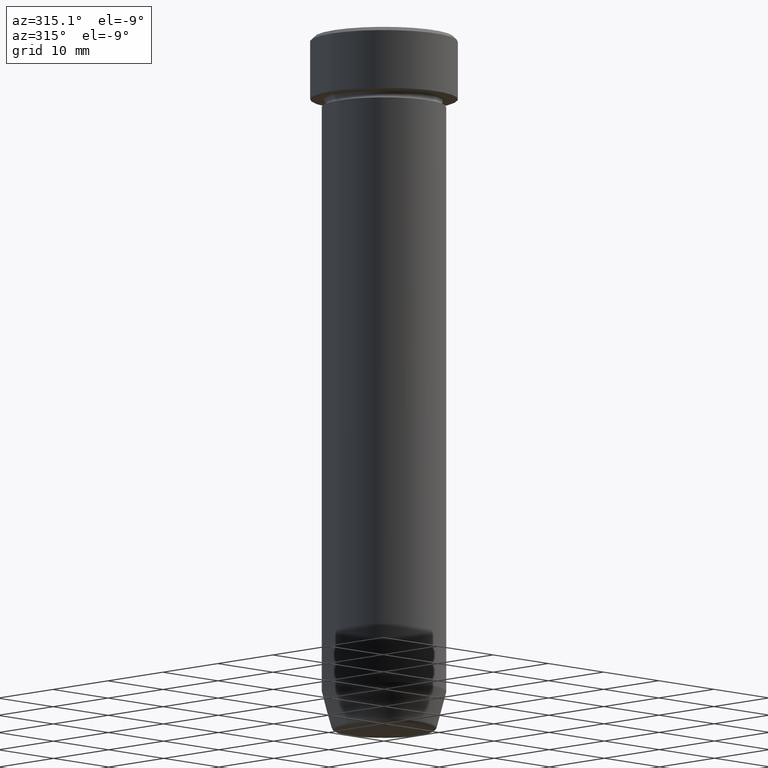
[diagram: clean part render]
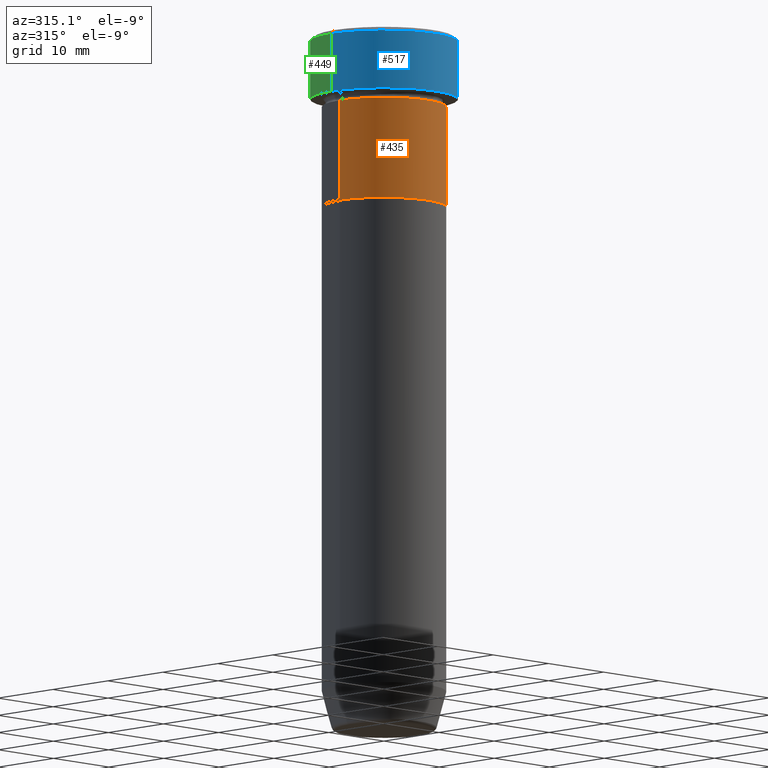
[diagram: same view with three faces highlighted in distinct colors, each labeled with its STEP entity id]
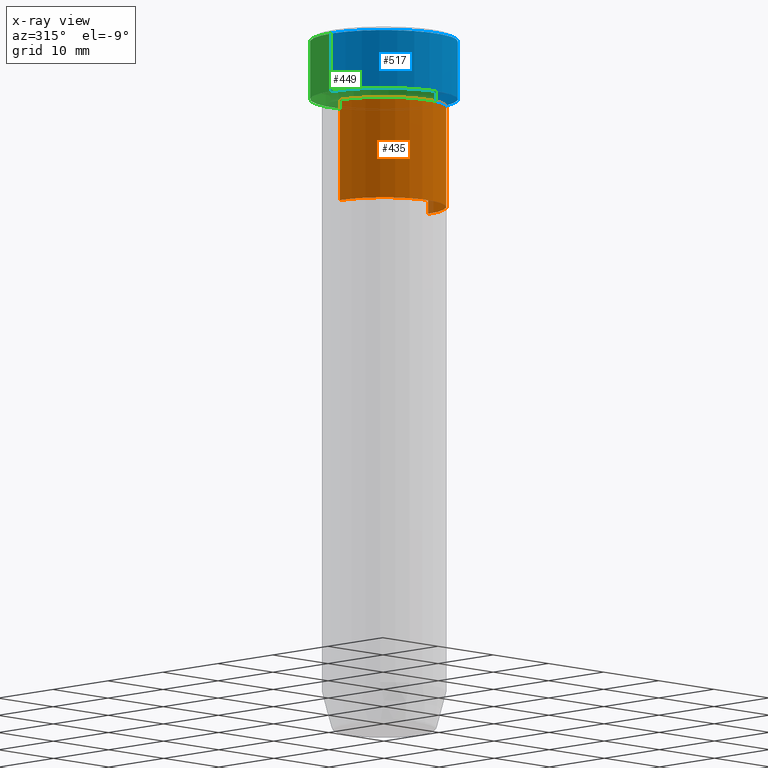
[diagram: x-ray of the same camera — body ghosted, the three highlighted faces saturated]
A machine part, auxiliary view with three faces highlighted in distinct colors.
The next image is the same camera in x-ray (body ghosted, the three faces saturated) — at least one of them is partly hidden behind the body in this view.
Their STEP definitions:

[orange] entity #435 — the highlighted cylindrical surface (partial cylindrical patch) has radius 8 mm, axis along (-0, -0, 1).
#3 = DIRECTION ( 'NONE',  ( 1.000000000000000000, 0.000000000000000000, 0.000000000000000000 ) ) ;
#31 = CIRCLE ( 'NONE', #360, 8.000000000000000000 ) ;
#46 = CARTESIAN_POINT ( 'NONE',  ( -8.000000000000000000, 9.797174393178825657E-16, 0.000000000000000000 ) ) ;
#53 = DIRECTION ( 'NONE',  ( -0.000000000000000000, -0.000000000000000000, 1.000000000000000000 ) ) ;
#54 = ORIENTED_EDGE ( 'NONE', *, *, #560, .F. ) ;
#93 = AXIS2_PLACEMENT_3D ( 'NONE', #566, #512, #3 ) ;
#97 = CARTESIAN_POINT ( 'NONE',  ( 8.000000000000000000, 0.000000000000000000, 0.000000000000000000 ) ) ;
#139 = CIRCLE ( 'NONE', #538, 8.000000000000000000 ) ;
#150 = VERTEX_POINT ( 'NONE', #396 ) ;
#172 = CARTESIAN_POINT ( 'NONE',  ( 0.000000000000000000, 0.000000000000000000, -9.000000000000001776 ) ) ;
#186 = CYLINDRICAL_SURFACE ( 'NONE', #93, 8.000000000000000000 ) ;
#194 = CARTESIAN_POINT ( 'NONE',  ( 0.000000000000000000, 0.000000000000000000, -22.00000000000000000 ) ) ;
#211 = VECTOR ( 'NONE', #372, 1000.000000000000000 ) ;
#212 = VECTOR ( 'NONE', #230, 1000.000000000000000 ) ;
#230 = DIRECTION ( 'NONE',  ( -0.000000000000000000, -0.000000000000000000, 1.000000000000000000 ) ) ;
#242 = ORIENTED_EDGE ( 'NONE', *, *, #355, .F. ) ;
#245 = VERTEX_POINT ( 'NONE', #540 ) ;
#276 = FACE_OUTER_BOUND ( 'NONE', #474, .T. ) ;
#277 = ORIENTED_EDGE ( 'NONE', *, *, #371, .T. ) ;
#284 = LINE ( 'NONE', #46, #212 ) ;
#292 = DIRECTION ( 'NONE',  ( -0.000000000000000000, -0.000000000000000000, 1.000000000000000000 ) ) ;
#331 = ORIENTED_EDGE ( 'NONE', *, *, #413, .T. ) ;
#334 = VERTEX_POINT ( 'NONE', #589 ) ;
#355 = EDGE_CURVE ( 'NONE', #245, #150, #139, .T. ) ;
#360 = AXIS2_PLACEMENT_3D ( 'NONE', #194, #292, #556 ) ;
#371 = EDGE_CURVE ( 'NONE', #527, #150, #380, .T. ) ;
#372 = DIRECTION ( 'NONE',  ( -0.000000000000000000, -0.000000000000000000, 1.000000000000000000 ) ) ;
#380 = LINE ( 'NONE', #97, #211 ) ;
#384 = DIRECTION ( 'NONE',  ( 1.000000000000000000, 0.000000000000000000, 0.000000000000000000 ) ) ;
#396 = CARTESIAN_POINT ( 'NONE',  ( 8.000000000000000000, 0.000000000000000000, -9.000000000000001776 ) ) ;
#413 = EDGE_CURVE ( 'NONE', #334, #527, #31, .T. ) ;
#435 = ADVANCED_FACE ( 'NONE', ( #276 ), #186, .T. ) ;
#474 = EDGE_LOOP ( 'NONE', ( #54, #331, #277, #242 ) ) ;
#504 = CARTESIAN_POINT ( 'NONE',  ( 8.000000000000000000, 0.000000000000000000, -22.00000000000000000 ) ) ;
#512 = DIRECTION ( 'NONE',  ( -0.000000000000000000, -0.000000000000000000, 1.000000000000000000 ) ) ;
#527 = VERTEX_POINT ( 'NONE', #504 ) ;
#538 = AXIS2_PLACEMENT_3D ( 'NONE', #172, #53, #384 ) ;
#540 = CARTESIAN_POINT ( 'NONE',  ( -8.000000000000000000, 9.797174393178825657E-16, -9.000000000000001776 ) ) ;
#556 = DIRECTION ( 'NONE',  ( 1.000000000000000000, 0.000000000000000000, 0.000000000000000000 ) ) ;
#560 = EDGE_CURVE ( 'NONE', #334, #245, #284, .T. ) ;
#566 = CARTESIAN_POINT ( 'NONE',  ( 0.000000000000000000, 0.000000000000000000, 0.000000000000000000 ) ) ;
#589 = CARTESIAN_POINT ( 'NONE',  ( -8.000000000000000000, 9.797174393178825657E-16, -22.00000000000000000 ) ) ;

[blue] entity #517 — the highlighted cylindrical surface (partial cylindrical patch) has radius 9.5 mm, axis along (-0, -0, 1).
#9 = VERTEX_POINT ( 'NONE', #426 ) ;
#10 = DIRECTION ( 'NONE',  ( -0.000000000000000000, -0.000000000000000000, 1.000000000000000000 ) ) ;
#16 = VERTEX_POINT ( 'NONE', #153 ) ;
#18 = ORIENTED_EDGE ( 'NONE', *, *, #38, .T. ) ;
#19 = VECTOR ( 'NONE', #10, 1000.000000000000000 ) ;
#38 = EDGE_CURVE ( 'NONE', #105, #395, #224, .T. ) ;
#39 = CARTESIAN_POINT ( 'NONE',  ( 9.500000000000000000, 0.000000000000000000, 0.000000000000000000 ) ) ;
#49 = CARTESIAN_POINT ( 'NONE',  ( -9.500000000000000000, 1.163414459189985485E-15, -0.4999999999999968914 ) ) ;
#105 = VERTEX_POINT ( 'NONE', #580 ) ;
#125 = LINE ( 'NONE', #39, #450 ) ;
#129 = DIRECTION ( 'NONE',  ( -0.000000000000000000, -0.000000000000000000, 1.000000000000000000 ) ) ;
#153 = CARTESIAN_POINT ( 'NONE',  ( -9.500000000000000000, 1.163414459189985485E-15, -8.000000000000000000 ) ) ;
#179 = AXIS2_PLACEMENT_3D ( 'NONE', #226, #129, #541 ) ;
#197 = EDGE_CURVE ( 'NONE', #16, #9, #385, .T. ) ;
#200 = ORIENTED_EDGE ( 'NONE', *, *, #494, .T. ) ;
#201 = AXIS2_PLACEMENT_3D ( 'NONE', #444, #350, #530 ) ;
#224 = CIRCLE ( 'NONE', #404, 9.500000000000000000 ) ;
#226 = CARTESIAN_POINT ( 'NONE',  ( 0.000000000000000000, 0.000000000000000000, 0.000000000000000000 ) ) ;
#240 = DIRECTION ( 'NONE',  ( 0.000000000000000000, 0.000000000000000000, -1.000000000000000000 ) ) ;
#326 = CARTESIAN_POINT ( 'NONE',  ( 0.000000000000000000, 0.000000000000000000, -0.4999999999999968914 ) ) ;
#350 = DIRECTION ( 'NONE',  ( -0.000000000000000000, -0.000000000000000000, 1.000000000000000000 ) ) ;
#364 = CYLINDRICAL_SURFACE ( 'NONE', #179, 9.500000000000000000 ) ;
#365 = EDGE_CURVE ( 'NONE', #16, #395, #460, .T. ) ;
#385 = CIRCLE ( 'NONE', #201, 9.500000000000000000 ) ;
#395 = VERTEX_POINT ( 'NONE', #49 ) ;
#404 = AXIS2_PLACEMENT_3D ( 'NONE', #326, #240, #507 ) ;
#426 = CARTESIAN_POINT ( 'NONE',  ( 9.500000000000000000, 0.000000000000000000, -8.000000000000000000 ) ) ;
#432 = ORIENTED_EDGE ( 'NONE', *, *, #197, .T. ) ;
#438 = ORIENTED_EDGE ( 'NONE', *, *, #365, .F. ) ;
#444 = CARTESIAN_POINT ( 'NONE',  ( 0.000000000000000000, 0.000000000000000000, -8.000000000000000000 ) ) ;
#450 = VECTOR ( 'NONE', #539, 1000.000000000000000 ) ;
#460 = LINE ( 'NONE', #471, #19 ) ;
#471 = CARTESIAN_POINT ( 'NONE',  ( -9.500000000000000000, 1.163414459189985485E-15, 0.000000000000000000 ) ) ;
#494 = EDGE_CURVE ( 'NONE', #9, #105, #125, .T. ) ;
#507 = DIRECTION ( 'NONE',  ( 1.000000000000000000, 0.000000000000000000, 0.000000000000000000 ) ) ;
#514 = EDGE_LOOP ( 'NONE', ( #438, #432, #200, #18 ) ) ;
#517 = ADVANCED_FACE ( 'NONE', ( #593 ), #364, .T. ) ;
#530 = DIRECTION ( 'NONE',  ( 1.000000000000000000, 0.000000000000000000, 0.000000000000000000 ) ) ;
#539 = DIRECTION ( 'NONE',  ( -0.000000000000000000, -0.000000000000000000, 1.000000000000000000 ) ) ;
#541 = DIRECTION ( 'NONE',  ( 1.000000000000000000, 0.000000000000000000, 0.000000000000000000 ) ) ;
#580 = CARTESIAN_POINT ( 'NONE',  ( 9.500000000000000000, 0.000000000000000000, -0.4999999999999968914 ) ) ;
#593 = FACE_OUTER_BOUND ( 'NONE', #514, .T. ) ;

[green] entity #449 — the highlighted cylindrical surface (partial cylindrical patch) has radius 9.5 mm, axis along (-0, -0, 1).
#9 = VERTEX_POINT ( 'NONE', #426 ) ;
#10 = DIRECTION ( 'NONE',  ( -0.000000000000000000, -0.000000000000000000, 1.000000000000000000 ) ) ;
#14 = DIRECTION ( 'NONE',  ( 1.000000000000000000, 0.000000000000000000, 0.000000000000000000 ) ) ;
#16 = VERTEX_POINT ( 'NONE', #153 ) ;
#19 = VECTOR ( 'NONE', #10, 1000.000000000000000 ) ;
#22 = ORIENTED_EDGE ( 'NONE', *, *, #494, .F. ) ;
#39 = CARTESIAN_POINT ( 'NONE',  ( 9.500000000000000000, 0.000000000000000000, 0.000000000000000000 ) ) ;
#49 = CARTESIAN_POINT ( 'NONE',  ( -9.500000000000000000, 1.163414459189985485E-15, -0.4999999999999968914 ) ) ;
#58 = CARTESIAN_POINT ( 'NONE',  ( 0.000000000000000000, 0.000000000000000000, 0.000000000000000000 ) ) ;
#99 = EDGE_LOOP ( 'NONE', ( #563, #155, #379, #22 ) ) ;
#103 = FACE_OUTER_BOUND ( 'NONE', #99, .T. ) ;
#105 = VERTEX_POINT ( 'NONE', #580 ) ;
#125 = LINE ( 'NONE', #39, #450 ) ;
#136 = DIRECTION ( 'NONE',  ( -0.000000000000000000, -0.000000000000000000, 1.000000000000000000 ) ) ;
#141 = DIRECTION ( 'NONE',  ( -0.000000000000000000, -0.000000000000000000, 1.000000000000000000 ) ) ;
#153 = CARTESIAN_POINT ( 'NONE',  ( -9.500000000000000000, 1.163414459189985485E-15, -8.000000000000000000 ) ) ;
#155 = ORIENTED_EDGE ( 'NONE', *, *, #365, .T. ) ;
#241 = AXIS2_PLACEMENT_3D ( 'NONE', #429, #332, #14 ) ;
#260 = EDGE_CURVE ( 'NONE', #9, #16, #468, .T. ) ;
#316 = CIRCLE ( 'NONE', #241, 9.500000000000000000 ) ;
#322 = CARTESIAN_POINT ( 'NONE',  ( 0.000000000000000000, 0.000000000000000000, -8.000000000000000000 ) ) ;
#328 = DIRECTION ( 'NONE',  ( 1.000000000000000000, 0.000000000000000000, 0.000000000000000000 ) ) ;
#332 = DIRECTION ( 'NONE',  ( 0.000000000000000000, 0.000000000000000000, -1.000000000000000000 ) ) ;
#365 = EDGE_CURVE ( 'NONE', #16, #395, #460, .T. ) ;
#379 = ORIENTED_EDGE ( 'NONE', *, *, #550, .T. ) ;
#395 = VERTEX_POINT ( 'NONE', #49 ) ;
#426 = CARTESIAN_POINT ( 'NONE',  ( 9.500000000000000000, 0.000000000000000000, -8.000000000000000000 ) ) ;
#429 = CARTESIAN_POINT ( 'NONE',  ( 0.000000000000000000, 0.000000000000000000, -0.4999999999999968914 ) ) ;
#449 = ADVANCED_FACE ( 'NONE', ( #103 ), #553, .T. ) ;
#450 = VECTOR ( 'NONE', #539, 1000.000000000000000 ) ;
#456 = AXIS2_PLACEMENT_3D ( 'NONE', #322, #136, #547 ) ;
#460 = LINE ( 'NONE', #471, #19 ) ;
#468 = CIRCLE ( 'NONE', #456, 9.500000000000000000 ) ;
#471 = CARTESIAN_POINT ( 'NONE',  ( -9.500000000000000000, 1.163414459189985485E-15, 0.000000000000000000 ) ) ;
#494 = EDGE_CURVE ( 'NONE', #9, #105, #125, .T. ) ;
#501 = AXIS2_PLACEMENT_3D ( 'NONE', #58, #141, #328 ) ;
#539 = DIRECTION ( 'NONE',  ( -0.000000000000000000, -0.000000000000000000, 1.000000000000000000 ) ) ;
#547 = DIRECTION ( 'NONE',  ( 1.000000000000000000, 0.000000000000000000, 0.000000000000000000 ) ) ;
#550 = EDGE_CURVE ( 'NONE', #395, #105, #316, .T. ) ;
#553 = CYLINDRICAL_SURFACE ( 'NONE', #501, 9.500000000000000000 ) ;
#563 = ORIENTED_EDGE ( 'NONE', *, *, #260, .T. ) ;
#580 = CARTESIAN_POINT ( 'NONE',  ( 9.500000000000000000, 0.000000000000000000, -0.4999999999999968914 ) ) ;